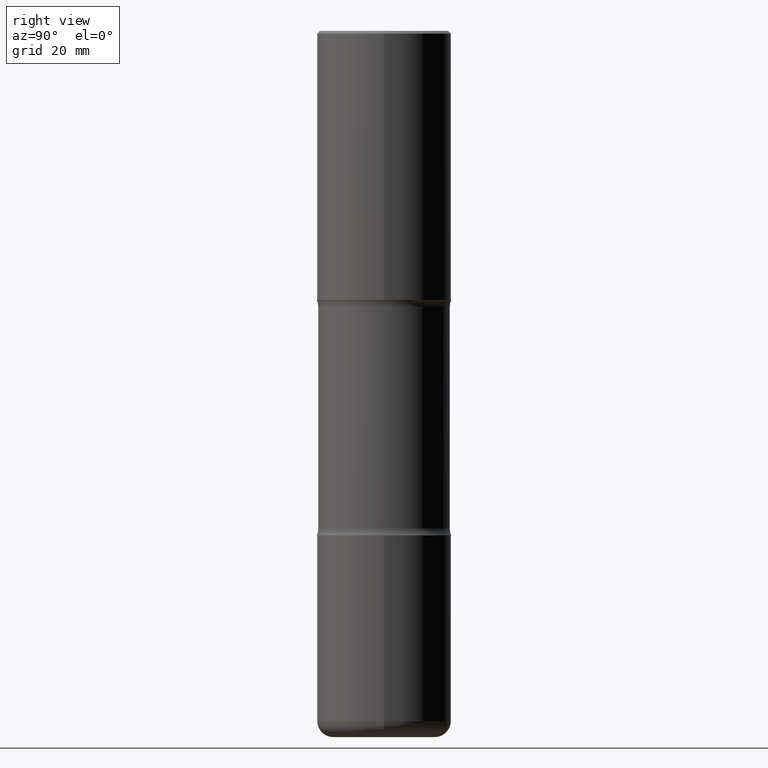
[diagram: clean part render]
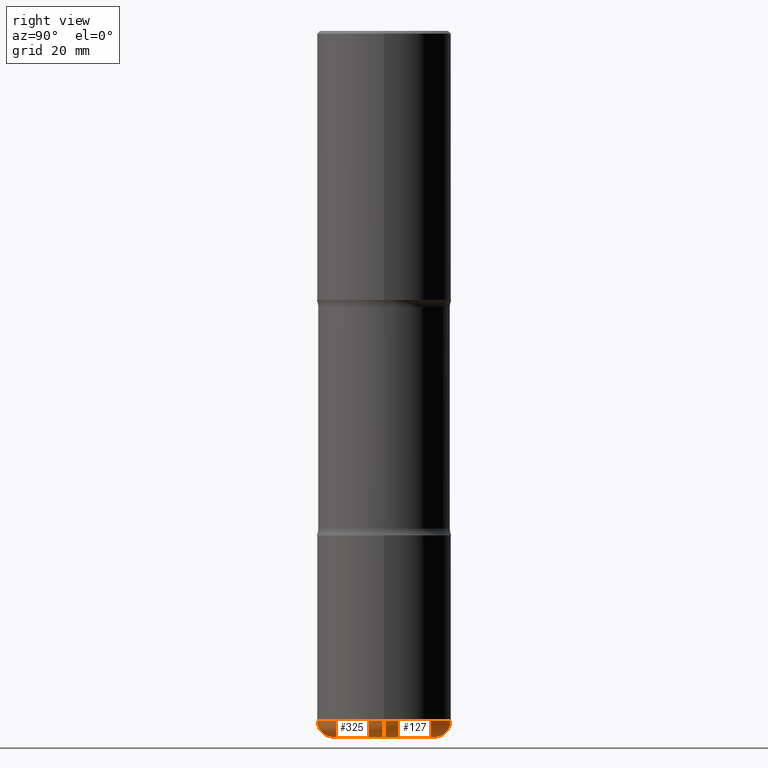
[diagram: same view with one multi-face feature highlighted, each face labeled with its STEP entity id]
A machine part, right view. The highlighted faces form ONE feature: a constant-radius fillet chain: 2 tangent blend faces with common blend radius 3.048 mm. The faces share edges in the B-rep.
Their STEP definitions:
[1] entity #325 (Torus):
#1 = DIRECTION ( 'NONE',  ( -2.445468806185136597E-29, 3.491481338843145583E-15, 1.000000000000000000 ) ) ;
#11 = ORIENTED_EDGE ( 'NONE', *, *, #416, .T. ) ;
#13 = TOROIDAL_SURFACE ( 'NONE', #247, 0.3800000000000005040, 0.1200000000000004258 ) ;
#19 = ORIENTED_EDGE ( 'NONE', *, *, #190, .T. ) ;
#54 = ORIENTED_EDGE ( 'NONE', *, *, #345, .F. ) ;
#73 = EDGE_LOOP ( 'NONE', ( #194, #11, #19, #54 ) ) ;
#85 = CIRCLE ( 'NONE', #290, 0.5000000000000004441 ) ;
#87 = AXIS2_PLACEMENT_3D ( 'NONE', #412, #495, #366 ) ;
#104 = VERTEX_POINT ( 'NONE', #176 ) ;
#159 = DIRECTION ( 'NONE',  ( -6.982962677686266711E-15, -1.000000000000000000, 3.491481338843145583E-15 ) ) ;
#173 = DIRECTION ( 'NONE',  ( 1.000000000000000000, -6.982962677686265133E-15, 4.883557194083112340E-29 ) ) ;
#176 = CARTESIAN_POINT ( 'NONE',  ( -0.5000000000000006661, -1.435858558946483566E-14, -5.130000000000001670 ) ) ;
#190 = EDGE_CURVE ( 'NONE', #560, #537, #256, .T. ) ;
#194 = ORIENTED_EDGE ( 'NONE', *, *, #454, .F. ) ;
#216 = CARTESIAN_POINT ( 'NONE',  ( 1.254525497572975307E-28, -1.791129926826534290E-14, -5.130000000000001670 ) ) ;
#222 = DIRECTION ( 'NONE',  ( -2.445468806185136597E-29, 3.491481338843145583E-15, 1.000000000000000000 ) ) ;
#247 = AXIS2_PLACEMENT_3D ( 'NONE', #216, #306, #173 ) ;
#256 = CIRCLE ( 'NONE', #468, 0.1200000000000004258 ) ;
#261 = FACE_OUTER_BOUND ( 'NONE', #73, .T. ) ;
#265 = DIRECTION ( 'NONE',  ( 1.000000000000000000, -6.982962677686264344E-15, 0.000000000000000000 ) ) ;
#288 = CARTESIAN_POINT ( 'NONE',  ( 0.5000000000000006661, -2.140278060710847941E-14, -5.130000000000001670 ) ) ;
#290 = AXIS2_PLACEMENT_3D ( 'NONE', #308, #1, #265 ) ;
#292 = VERTEX_POINT ( 'NONE', #443 ) ;
#306 = DIRECTION ( 'NONE',  ( -2.445468806185136597E-29, 3.491481338843145583E-15, 1.000000000000000000 ) ) ;
#308 = CARTESIAN_POINT ( 'NONE',  ( 1.254525497572975307E-28, -1.791129926826534290E-14, -5.130000000000001670 ) ) ;
#325 = ADVANCED_FACE ( 'NONE', ( #261 ), #13, .T. ) ;
#333 = CIRCLE ( 'NONE', #87, 0.1200000000000004258 ) ;
#341 = DIRECTION ( 'NONE',  ( 1.000000000000000000, -6.982962677686275388E-15, 0.000000000000000000 ) ) ;
#345 = EDGE_CURVE ( 'NONE', #104, #537, #85, .T. ) ;
#356 = DIRECTION ( 'NONE',  ( 1.000000000000000000, -6.982962677686262766E-15, 0.000000000000000000 ) ) ;
#358 = CARTESIAN_POINT ( 'NONE',  ( 1.283871123247197162E-28, -1.833027702892652269E-14, -5.250000000000001776 ) ) ;
#366 = DIRECTION ( 'NONE',  ( -1.000000000000000000, 7.105427357600997914E-15, 0.000000000000000000 ) ) ;
#389 = CARTESIAN_POINT ( 'NONE',  ( 0.3800000000000005040, -2.056482508578612930E-14, -5.130000000000001670 ) ) ;
#412 = CARTESIAN_POINT ( 'NONE',  ( -0.3800000000000005040, -1.521123687237695664E-14, -5.130000000000001670 ) ) ;
#416 = EDGE_CURVE ( 'NONE', #292, #560, #459, .T. ) ;
#439 = AXIS2_PLACEMENT_3D ( 'NONE', #358, #222, #356 ) ;
#443 = CARTESIAN_POINT ( 'NONE',  ( -0.3800000000000005040, -1.499440011125148605E-14, -5.250000000000001776 ) ) ;
#454 = EDGE_CURVE ( 'NONE', #292, #104, #333, .T. ) ;
#459 = CIRCLE ( 'NONE', #439, 0.3800000000000005040 ) ;
#468 = AXIS2_PLACEMENT_3D ( 'NONE', #389, #159, #341 ) ;
#495 = DIRECTION ( 'NONE',  ( 7.105427357601001859E-15, 1.000000000000000000, -3.491481338843145583E-15 ) ) ;
#537 = VERTEX_POINT ( 'NONE', #288 ) ;
#547 = CARTESIAN_POINT ( 'NONE',  ( 0.3800000000000005040, -2.098380284644730593E-14, -5.250000000000001776 ) ) ;
#560 = VERTEX_POINT ( 'NONE', #547 ) ;
[2] entity #127 (Torus):
#3 = DIRECTION ( 'NONE',  ( -2.445468806185136597E-29, 3.491481338843145583E-15, 1.000000000000000000 ) ) ;
#29 = CIRCLE ( 'NONE', #69, 0.3800000000000005040 ) ;
#69 = AXIS2_PLACEMENT_3D ( 'NONE', #219, #3, #435 ) ;
#87 = AXIS2_PLACEMENT_3D ( 'NONE', #412, #495, #366 ) ;
#104 = VERTEX_POINT ( 'NONE', #176 ) ;
#127 = ADVANCED_FACE ( 'NONE', ( #264 ), #359, .T. ) ;
#149 = EDGE_LOOP ( 'NONE', ( #514, #405, #462, #379 ) ) ;
#159 = DIRECTION ( 'NONE',  ( -6.982962677686266711E-15, -1.000000000000000000, 3.491481338843145583E-15 ) ) ;
#176 = CARTESIAN_POINT ( 'NONE',  ( -0.5000000000000006661, -1.435858558946483566E-14, -5.130000000000001670 ) ) ;
#190 = EDGE_CURVE ( 'NONE', #560, #537, #256, .T. ) ;
#206 = AXIS2_PLACEMENT_3D ( 'NONE', #517, #386, #337 ) ;
#209 = EDGE_CURVE ( 'NONE', #537, #104, #429, .T. ) ;
#219 = CARTESIAN_POINT ( 'NONE',  ( 1.283871123247197162E-28, -1.833027702892652269E-14, -5.250000000000001776 ) ) ;
#256 = CIRCLE ( 'NONE', #468, 0.1200000000000004258 ) ;
#264 = FACE_OUTER_BOUND ( 'NONE', #149, .T. ) ;
#288 = CARTESIAN_POINT ( 'NONE',  ( 0.5000000000000006661, -2.140278060710847941E-14, -5.130000000000001670 ) ) ;
#292 = VERTEX_POINT ( 'NONE', #443 ) ;
#305 = EDGE_CURVE ( 'NONE', #560, #292, #29, .T. ) ;
#329 = AXIS2_PLACEMENT_3D ( 'NONE', #363, #403, #529 ) ;
#333 = CIRCLE ( 'NONE', #87, 0.1200000000000004258 ) ;
#337 = DIRECTION ( 'NONE',  ( 1.000000000000000000, -6.982962677686264344E-15, 0.000000000000000000 ) ) ;
#341 = DIRECTION ( 'NONE',  ( 1.000000000000000000, -6.982962677686275388E-15, 0.000000000000000000 ) ) ;
#359 = TOROIDAL_SURFACE ( 'NONE', #329, 0.3800000000000005040, 0.1200000000000004258 ) ;
#363 = CARTESIAN_POINT ( 'NONE',  ( 1.254525497572975307E-28, -1.791129926826534290E-14, -5.130000000000001670 ) ) ;
#366 = DIRECTION ( 'NONE',  ( -1.000000000000000000, 7.105427357600997914E-15, 0.000000000000000000 ) ) ;
#379 = ORIENTED_EDGE ( 'NONE', *, *, #190, .F. ) ;
#386 = DIRECTION ( 'NONE',  ( -2.445468806185136597E-29, 3.491481338843145583E-15, 1.000000000000000000 ) ) ;
#389 = CARTESIAN_POINT ( 'NONE',  ( 0.3800000000000005040, -2.056482508578612930E-14, -5.130000000000001670 ) ) ;
#403 = DIRECTION ( 'NONE',  ( -2.445468806185136597E-29, 3.491481338843145583E-15, 1.000000000000000000 ) ) ;
#405 = ORIENTED_EDGE ( 'NONE', *, *, #454, .T. ) ;
#412 = CARTESIAN_POINT ( 'NONE',  ( -0.3800000000000005040, -1.521123687237695664E-14, -5.130000000000001670 ) ) ;
#429 = CIRCLE ( 'NONE', #206, 0.5000000000000004441 ) ;
#435 = DIRECTION ( 'NONE',  ( 1.000000000000000000, -6.982962677686262766E-15, 0.000000000000000000 ) ) ;
#443 = CARTESIAN_POINT ( 'NONE',  ( -0.3800000000000005040, -1.499440011125148605E-14, -5.250000000000001776 ) ) ;
#454 = EDGE_CURVE ( 'NONE', #292, #104, #333, .T. ) ;
#462 = ORIENTED_EDGE ( 'NONE', *, *, #209, .F. ) ;
#468 = AXIS2_PLACEMENT_3D ( 'NONE', #389, #159, #341 ) ;
#495 = DIRECTION ( 'NONE',  ( 7.105427357601001859E-15, 1.000000000000000000, -3.491481338843145583E-15 ) ) ;
#514 = ORIENTED_EDGE ( 'NONE', *, *, #305, .T. ) ;
#517 = CARTESIAN_POINT ( 'NONE',  ( 1.254525497572975307E-28, -1.791129926826534290E-14, -5.130000000000001670 ) ) ;
#529 = DIRECTION ( 'NONE',  ( 1.000000000000000000, -6.982962677686265133E-15, 4.883557194083112340E-29 ) ) ;
#537 = VERTEX_POINT ( 'NONE', #288 ) ;
#547 = CARTESIAN_POINT ( 'NONE',  ( 0.3800000000000005040, -2.098380284644730593E-14, -5.250000000000001776 ) ) ;
#560 = VERTEX_POINT ( 'NONE', #547 ) ;